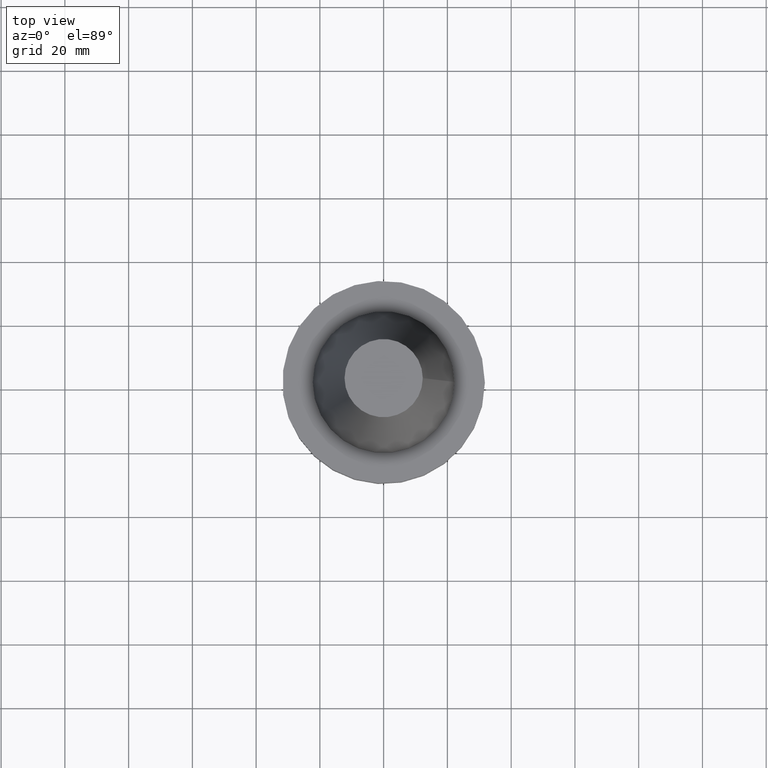
[diagram: clean part render]
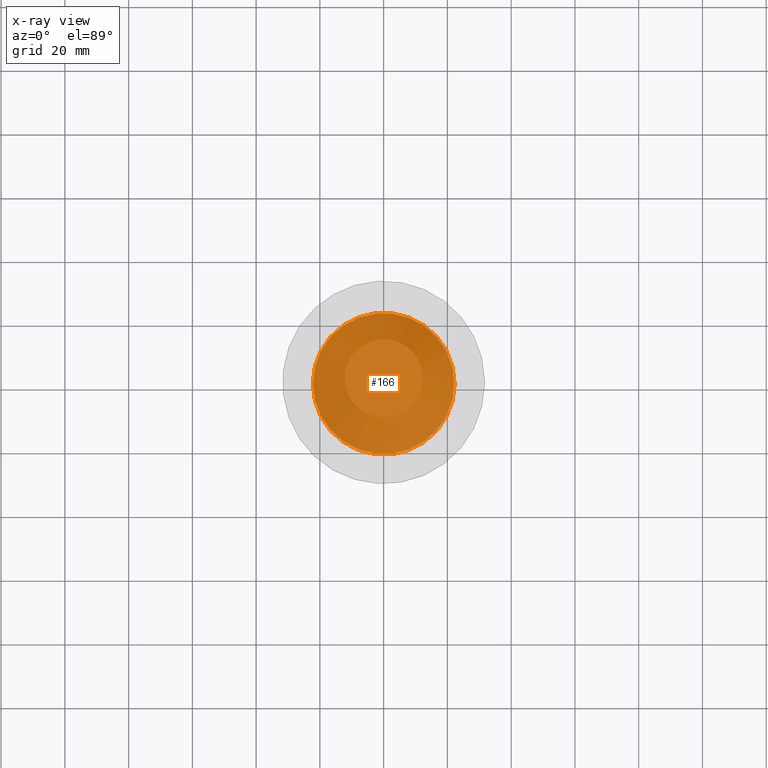
[diagram: x-ray — body ghosted, one internal face saturated and labeled with its STEP entity id]
A machine part, top view, then the same camera in x-ray: the body is ghosted and one INTERNAL B-rep face — a face not visible from any outside direction — is saturated and labeled: STEP entity #166.
In plain terms, the highlighted planar face has unit normal (0, -0, 1).
Its self-contained STEP definition (entity closure, byte-faithful):
#25 = CARTESIAN_POINT ( 'NONE',  ( 22.22500000000000142, 0.000000000000000000, -35.04999999999999716 ) ) ;
#53 = DIRECTION ( 'NONE',  ( 1.000000000000000000, 0.000000000000000000, 0.000000000000000000 ) ) ;
#57 = CARTESIAN_POINT ( 'NONE',  ( 0.000000000000000000, 0.000000000000000000, -35.04999999999999716 ) ) ;
#92 = CARTESIAN_POINT ( 'NONE',  ( 0.000000000000000000, 22.22500000000000142, -35.04999999999999716 ) ) ;
#95 = DIRECTION ( 'NONE',  ( -0.000000000000000000, -0.000000000000000000, 1.000000000000000000 ) ) ;
#166 = ADVANCED_FACE ( 'NONE', ( #378 ), #282, .F. ) ;
#198 = EDGE_CURVE ( 'NONE', #303, #303, #353, .T. ) ;
#205 = EDGE_LOOP ( 'NONE', ( #389 ) ) ;
#222 = DIRECTION ( 'NONE',  ( 0.000000000000000000, -0.000000000000000000, 1.000000000000000000 ) ) ;
#224 = DIRECTION ( 'NONE',  ( 1.000000000000000000, 0.000000000000000000, 0.000000000000000000 ) ) ;
#282 = PLANE ( 'NONE',  #298 ) ;
#298 = AXIS2_PLACEMENT_3D ( 'NONE', #92, #222, #53 ) ;
#303 = VERTEX_POINT ( 'NONE', #25 ) ;
#353 = CIRCLE ( 'NONE', #364, 22.22500000000000142 ) ;
#364 = AXIS2_PLACEMENT_3D ( 'NONE', #57, #95, #224 ) ;
#378 = FACE_OUTER_BOUND ( 'NONE', #205, .T. ) ;
#389 = ORIENTED_EDGE ( 'NONE', *, *, #198, .F. ) ;